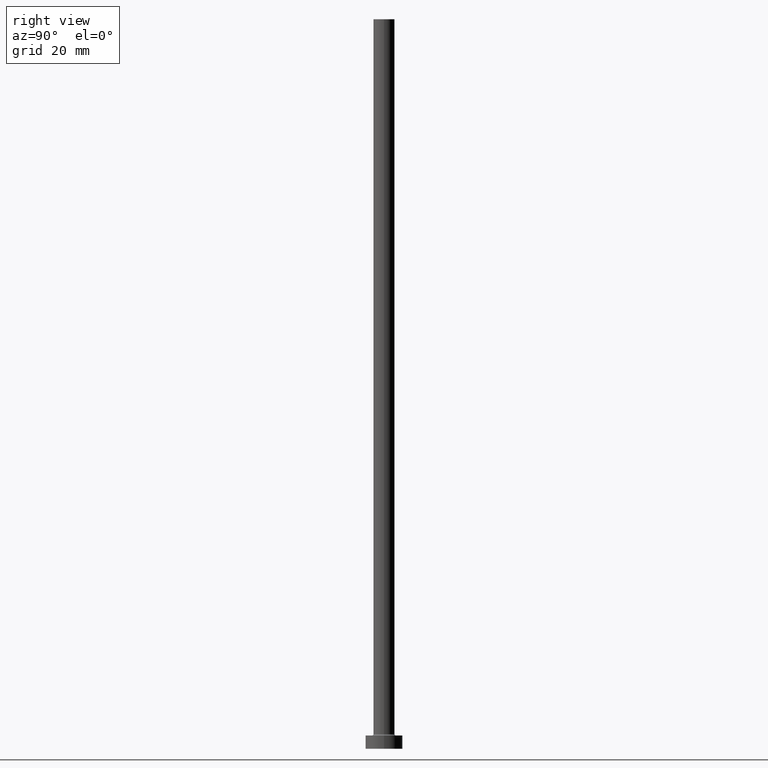
[diagram: clean part render]
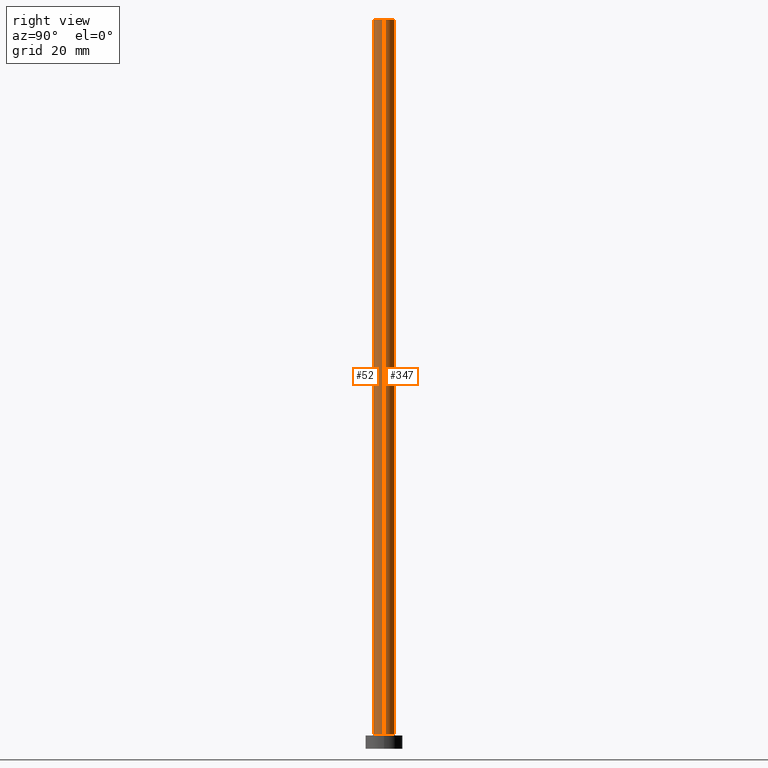
[diagram: same view with one multi-face feature highlighted, each face labeled with its STEP entity id]
A machine part, right view. The highlighted faces form ONE feature: a constant-radius fillet chain: 2 tangent blend faces with common blend radius 4 mm. The faces share edges in the B-rep.
Their STEP definitions:
[1] entity #52 (Cylinder):
#9 = AXIS2_PLACEMENT_3D ( 'NONE', #433, #251, #427 ) ;
#33 = EDGE_CURVE ( 'NONE', #424, #48, #279, .T. ) ;
#34 = LINE ( 'NONE', #270, #370 ) ;
#48 = VERTEX_POINT ( 'NONE', #73 ) ;
#51 = DIRECTION ( 'NONE',  ( 1.000000000000000000, 0.000000000000000000, 0.000000000000000000 ) ) ;
#52 = ADVANCED_FACE ( 'NONE', ( #64 ), #358, .T. ) ;
#62 = DIRECTION ( 'NONE',  ( -0.000000000000000000, -0.000000000000000000, -1.000000000000000000 ) ) ;
#64 = FACE_OUTER_BOUND ( 'NONE', #227, .T. ) ;
#73 = CARTESIAN_POINT ( 'NONE',  ( 4.000000000000000000, 4.898587196589412829E-16, 5.500000000000005329 ) ) ;
#99 = ORIENTED_EDGE ( 'NONE', *, *, #351, .T. ) ;
#101 = CARTESIAN_POINT ( 'NONE',  ( 0.000000000000000000, 0.000000000000000000, 275.0000000000000000 ) ) ;
#102 = VECTOR ( 'NONE', #62, 1000.000000000000000 ) ;
#108 = ORIENTED_EDGE ( 'NONE', *, *, #117, .T. ) ;
#116 = DIRECTION ( 'NONE',  ( 0.000000000000000000, 0.000000000000000000, 1.000000000000000000 ) ) ;
#117 = EDGE_CURVE ( 'NONE', #403, #48, #204, .T. ) ;
#169 = VERTEX_POINT ( 'NONE', #288 ) ;
#204 = CIRCLE ( 'NONE', #418, 4.000000000000000000 ) ;
#208 = EDGE_CURVE ( 'NONE', #169, #424, #360, .T. ) ;
#227 = EDGE_LOOP ( 'NONE', ( #438, #310, #99, #108 ) ) ;
#251 = DIRECTION ( 'NONE',  ( 0.000000000000000000, 0.000000000000000000, 1.000000000000000000 ) ) ;
#267 = AXIS2_PLACEMENT_3D ( 'NONE', #101, #318, #431 ) ;
#270 = CARTESIAN_POINT ( 'NONE',  ( -4.000000000000000000, 0.000000000000000000, 275.0000000000000000 ) ) ;
#279 = LINE ( 'NONE', #423, #102 ) ;
#288 = CARTESIAN_POINT ( 'NONE',  ( -4.000000000000000000, 0.000000000000000000, 275.0000000000000000 ) ) ;
#295 = CARTESIAN_POINT ( 'NONE',  ( 0.000000000000000000, 0.000000000000000000, 5.500000000000005329 ) ) ;
#310 = ORIENTED_EDGE ( 'NONE', *, *, #208, .F. ) ;
#318 = DIRECTION ( 'NONE',  ( -0.000000000000000000, -0.000000000000000000, -1.000000000000000000 ) ) ;
#351 = EDGE_CURVE ( 'NONE', #169, #403, #34, .T. ) ;
#358 = CYLINDRICAL_SURFACE ( 'NONE', #267, 4.000000000000000000 ) ;
#360 = CIRCLE ( 'NONE', #9, 4.000000000000000000 ) ;
#370 = VECTOR ( 'NONE', #414, 1000.000000000000000 ) ;
#386 = CARTESIAN_POINT ( 'NONE',  ( 4.000000000000000000, 4.898587196589412829E-16, 275.0000000000000000 ) ) ;
#403 = VERTEX_POINT ( 'NONE', #461 ) ;
#414 = DIRECTION ( 'NONE',  ( -0.000000000000000000, -0.000000000000000000, -1.000000000000000000 ) ) ;
#418 = AXIS2_PLACEMENT_3D ( 'NONE', #295, #116, #51 ) ;
#423 = CARTESIAN_POINT ( 'NONE',  ( 4.000000000000000000, 4.898587196589412829E-16, 275.0000000000000000 ) ) ;
#424 = VERTEX_POINT ( 'NONE', #386 ) ;
#427 = DIRECTION ( 'NONE',  ( 1.000000000000000000, 0.000000000000000000, 0.000000000000000000 ) ) ;
#431 = DIRECTION ( 'NONE',  ( -1.000000000000000000, 0.000000000000000000, 0.000000000000000000 ) ) ;
#433 = CARTESIAN_POINT ( 'NONE',  ( 0.000000000000000000, 0.000000000000000000, 275.0000000000000000 ) ) ;
#438 = ORIENTED_EDGE ( 'NONE', *, *, #33, .F. ) ;
#461 = CARTESIAN_POINT ( 'NONE',  ( -4.000000000000000000, 0.000000000000000000, 5.500000000000005329 ) ) ;
[2] entity #347 (Cylinder):
#25 = CYLINDRICAL_SURFACE ( 'NONE', #342, 4.000000000000000000 ) ;
#27 = DIRECTION ( 'NONE',  ( -1.000000000000000000, 0.000000000000000000, 0.000000000000000000 ) ) ;
#33 = EDGE_CURVE ( 'NONE', #424, #48, #279, .T. ) ;
#34 = LINE ( 'NONE', #270, #370 ) ;
#48 = VERTEX_POINT ( 'NONE', #73 ) ;
#58 = FACE_OUTER_BOUND ( 'NONE', #115, .T. ) ;
#59 = DIRECTION ( 'NONE',  ( 1.000000000000000000, 0.000000000000000000, 0.000000000000000000 ) ) ;
#62 = DIRECTION ( 'NONE',  ( -0.000000000000000000, -0.000000000000000000, -1.000000000000000000 ) ) ;
#73 = CARTESIAN_POINT ( 'NONE',  ( 4.000000000000000000, 4.898587196589412829E-16, 5.500000000000005329 ) ) ;
#94 = CARTESIAN_POINT ( 'NONE',  ( 0.000000000000000000, 0.000000000000000000, 275.0000000000000000 ) ) ;
#102 = VECTOR ( 'NONE', #62, 1000.000000000000000 ) ;
#104 = AXIS2_PLACEMENT_3D ( 'NONE', #209, #352, #324 ) ;
#112 = AXIS2_PLACEMENT_3D ( 'NONE', #94, #381, #59 ) ;
#115 = EDGE_LOOP ( 'NONE', ( #156, #371, #390, #308 ) ) ;
#156 = ORIENTED_EDGE ( 'NONE', *, *, #457, .F. ) ;
#169 = VERTEX_POINT ( 'NONE', #288 ) ;
#209 = CARTESIAN_POINT ( 'NONE',  ( 0.000000000000000000, 0.000000000000000000, 5.500000000000005329 ) ) ;
#270 = CARTESIAN_POINT ( 'NONE',  ( -4.000000000000000000, 0.000000000000000000, 275.0000000000000000 ) ) ;
#278 = CARTESIAN_POINT ( 'NONE',  ( 0.000000000000000000, 0.000000000000000000, 275.0000000000000000 ) ) ;
#279 = LINE ( 'NONE', #423, #102 ) ;
#288 = CARTESIAN_POINT ( 'NONE',  ( -4.000000000000000000, 0.000000000000000000, 275.0000000000000000 ) ) ;
#308 = ORIENTED_EDGE ( 'NONE', *, *, #351, .F. ) ;
#324 = DIRECTION ( 'NONE',  ( 1.000000000000000000, 0.000000000000000000, 0.000000000000000000 ) ) ;
#342 = AXIS2_PLACEMENT_3D ( 'NONE', #278, #349, #27 ) ;
#347 = ADVANCED_FACE ( 'NONE', ( #58 ), #25, .T. ) ;
#349 = DIRECTION ( 'NONE',  ( -0.000000000000000000, -0.000000000000000000, -1.000000000000000000 ) ) ;
#351 = EDGE_CURVE ( 'NONE', #169, #403, #34, .T. ) ;
#352 = DIRECTION ( 'NONE',  ( 0.000000000000000000, 0.000000000000000000, 1.000000000000000000 ) ) ;
#370 = VECTOR ( 'NONE', #414, 1000.000000000000000 ) ;
#371 = ORIENTED_EDGE ( 'NONE', *, *, #33, .T. ) ;
#381 = DIRECTION ( 'NONE',  ( 0.000000000000000000, 0.000000000000000000, 1.000000000000000000 ) ) ;
#386 = CARTESIAN_POINT ( 'NONE',  ( 4.000000000000000000, 4.898587196589412829E-16, 275.0000000000000000 ) ) ;
#389 = CIRCLE ( 'NONE', #112, 4.000000000000000000 ) ;
#390 = ORIENTED_EDGE ( 'NONE', *, *, #422, .T. ) ;
#397 = CIRCLE ( 'NONE', #104, 4.000000000000000000 ) ;
#403 = VERTEX_POINT ( 'NONE', #461 ) ;
#414 = DIRECTION ( 'NONE',  ( -0.000000000000000000, -0.000000000000000000, -1.000000000000000000 ) ) ;
#422 = EDGE_CURVE ( 'NONE', #48, #403, #397, .T. ) ;
#423 = CARTESIAN_POINT ( 'NONE',  ( 4.000000000000000000, 4.898587196589412829E-16, 275.0000000000000000 ) ) ;
#424 = VERTEX_POINT ( 'NONE', #386 ) ;
#457 = EDGE_CURVE ( 'NONE', #424, #169, #389, .T. ) ;
#461 = CARTESIAN_POINT ( 'NONE',  ( -4.000000000000000000, 0.000000000000000000, 5.500000000000005329 ) ) ;